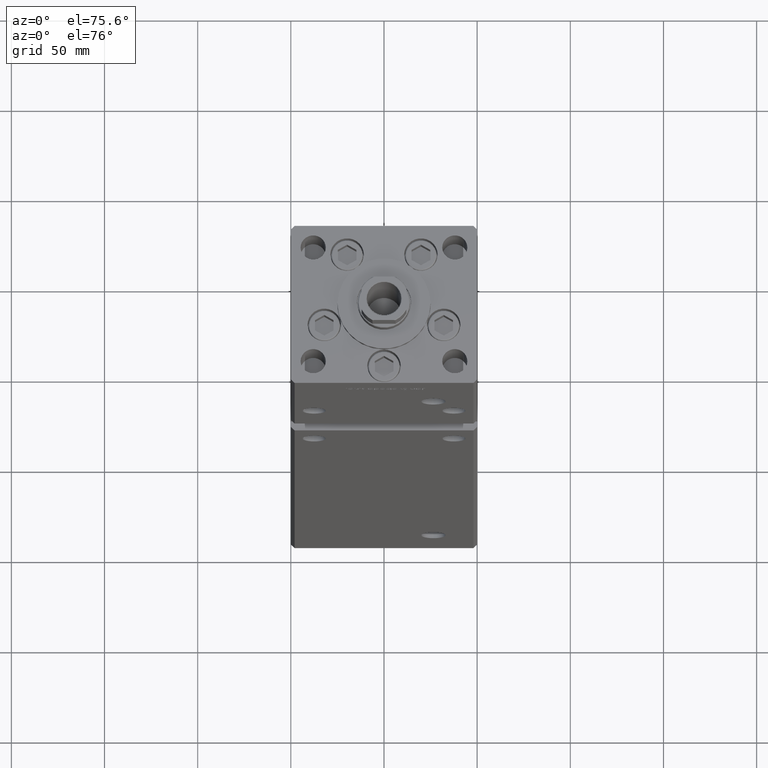
[diagram: clean part render]
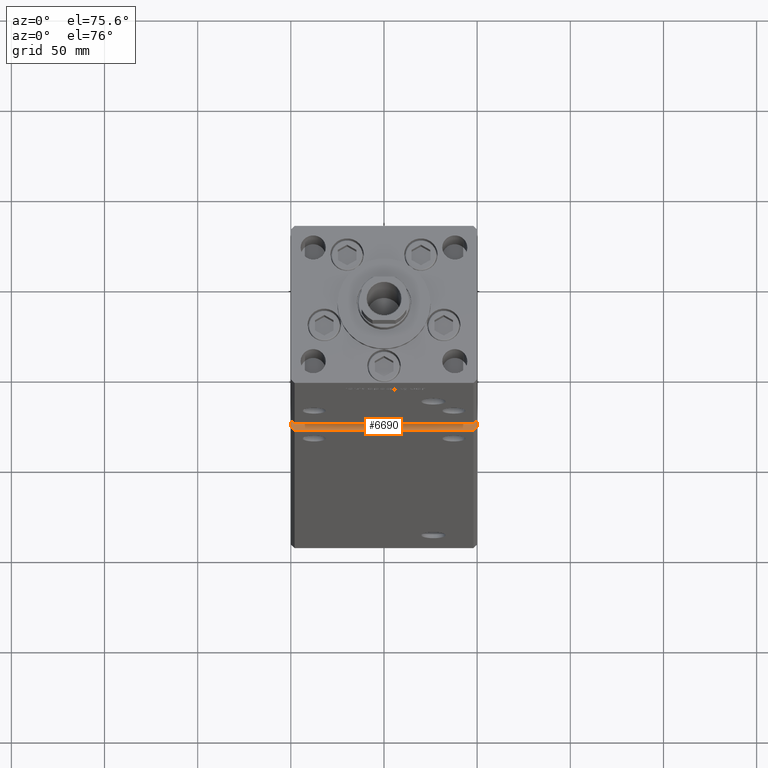
[diagram: same view with one face highlighted and labeled with its STEP entity id]
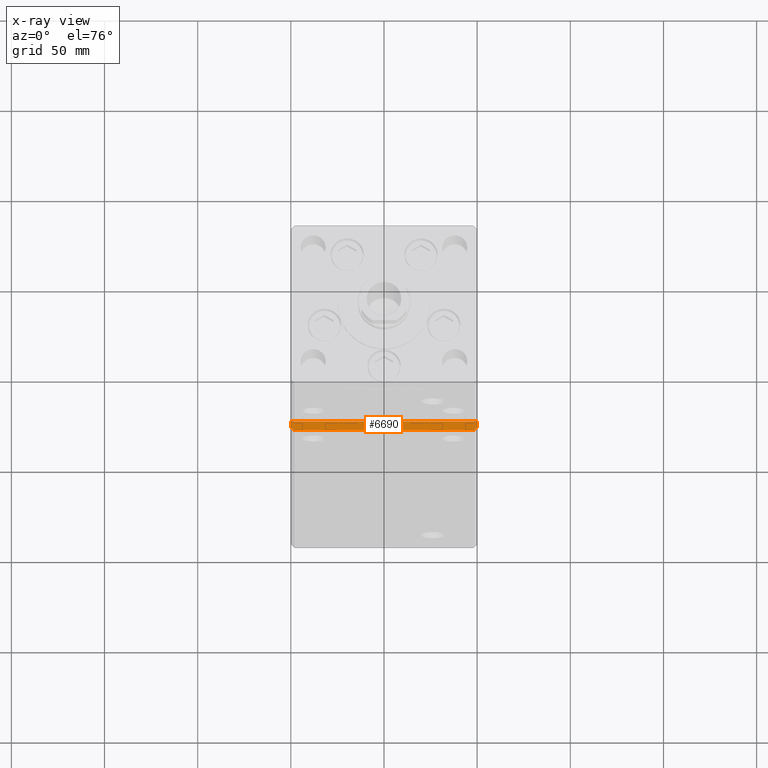
[diagram: x-ray of the same camera — body ghosted, the highlighted face saturated]
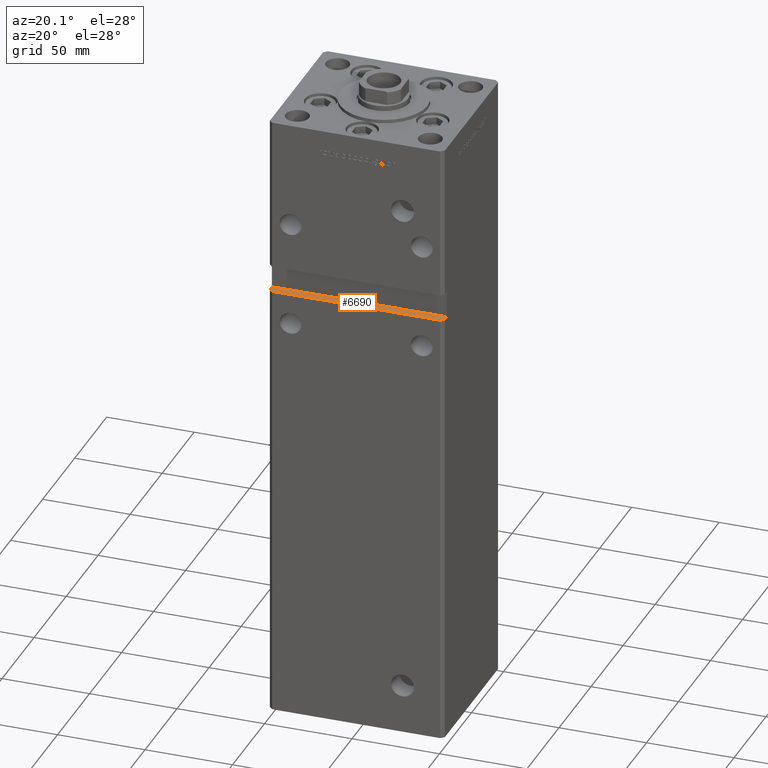
[diagram: same view with one face highlighted and labeled with its STEP entity id]
A machine part, auxiliary view. The second image highlights one B-rep face of the part: STEP entity #6690.
The next image is the same camera in x-ray: the body ghosted, the highlighted face saturated — about 0% of this face is hidden behind the body in this view.
A second angle (auxiliary view) of the same face is appended — the face is thin or edge-on in the first view.
In plain terms, the highlighted planar face has unit normal (0, 0, -1).
Its self-contained STEP definition (entity closure, byte-faithful):
#706 = CARTESIAN_POINT ( 'NONE',  ( -49.99999999999998579, -43.50000000000000000, 235.0000000000000000 ) ) ;
#869 = VECTOR ( 'NONE', #31274, 1000.000000000000114 ) ;
#1835 = VERTEX_POINT ( 'NONE', #37860 ) ;
#1865 = CARTESIAN_POINT ( 'NONE',  ( 47.99999999999998579, -43.50000000000000000, 235.0000000000000000 ) ) ;
#2505 = CARTESIAN_POINT ( 'NONE',  ( -49.99999999999998579, -38.50000000000000000, 235.0000000000000000 ) ) ;
#3049 = CARTESIAN_POINT ( 'NONE',  ( 49.99999999999998579, -38.50000000000000000, 235.0000000000000000 ) ) ;
#3150 = EDGE_LOOP ( 'NONE', ( #41624, #37585, #46449, #41043, #9853, #32683 ) ) ;
#4388 = VECTOR ( 'NONE', #37754, 1000.000000000000000 ) ;
#5982 = LINE ( 'NONE', #25643, #4388 ) ;
#6690 = ADVANCED_FACE ( 'NONE', ( #17757 ), #13711, .F. ) ;
#9696 = CARTESIAN_POINT ( 'NONE',  ( -49.99999999999998579, -38.50000000000000000, 235.0000000000000000 ) ) ;
#9853 = ORIENTED_EDGE ( 'NONE', *, *, #52220, .T. ) ;
#10575 = VERTEX_POINT ( 'NONE', #51579 ) ;
#10821 = CARTESIAN_POINT ( 'NONE',  ( -49.99999999999998579, -41.49999999999999289, 235.0000000000000000 ) ) ;
#13556 = CARTESIAN_POINT ( 'NONE',  ( -49.99999999999998579, -38.50000000000000000, 235.0000000000000000 ) ) ;
#13571 = EDGE_CURVE ( 'NONE', #34584, #51765, #51706, .T. ) ;
#13711 = PLANE ( 'NONE',  #26918 ) ;
#13852 = DIRECTION ( 'NONE',  ( 1.000000000000000000, 0.000000000000000000, 0.000000000000000000 ) ) ;
#16304 = CARTESIAN_POINT ( 'NONE',  ( 49.99999999999998579, -41.49999999999999289, 235.0000000000000000 ) ) ;
#17319 = VECTOR ( 'NONE', #18914, 1000.000000000000000 ) ;
#17757 = FACE_OUTER_BOUND ( 'NONE', #3150, .T. ) ;
#18914 = DIRECTION ( 'NONE',  ( 1.000000000000000000, 0.000000000000000000, 0.000000000000000000 ) ) ;
#22108 = VECTOR ( 'NONE', #40151, 1000.000000000000000 ) ;
#23679 = CARTESIAN_POINT ( 'NONE',  ( 49.99999999999998579, -38.49999999999999289, 235.0000000000000000 ) ) ;
#25643 = CARTESIAN_POINT ( 'NONE',  ( -49.99999999999998579, -38.50000000000000000, 235.0000000000000000 ) ) ;
#25707 = VERTEX_POINT ( 'NONE', #1865 ) ;
#25834 = DIRECTION ( 'NONE',  ( -1.000000000000000000, 0.000000000000000000, -0.000000000000000000 ) ) ;
#26918 = AXIS2_PLACEMENT_3D ( 'NONE', #9696, #50281, #25834 ) ;
#31274 = DIRECTION ( 'NONE',  ( -0.7071067811865474617, 0.7071067811865474617, 0.000000000000000000 ) ) ;
#32683 = ORIENTED_EDGE ( 'NONE', *, *, #49472, .F. ) ;
#33820 = LINE ( 'NONE', #2505, #17319 ) ;
#34222 = EDGE_CURVE ( 'NONE', #50272, #34584, #33820, .T. ) ;
#34584 = VERTEX_POINT ( 'NONE', #23679 ) ;
#37585 = ORIENTED_EDGE ( 'NONE', *, *, #44315, .T. ) ;
#37754 = DIRECTION ( 'NONE',  ( -0.000000000000000000, -1.000000000000000000, -0.000000000000000000 ) ) ;
#37860 = CARTESIAN_POINT ( 'NONE',  ( -49.99999999999998579, -41.49999999999999289, 235.0000000000000000 ) ) ;
#40151 = DIRECTION ( 'NONE',  ( -0.000000000000000000, -1.000000000000000000, -0.000000000000000000 ) ) ;
#40514 = DIRECTION ( 'NONE',  ( 0.7071067811865474617, 0.7071067811865474617, 0.000000000000000000 ) ) ;
#41043 = ORIENTED_EDGE ( 'NONE', *, *, #34222, .F. ) ;
#41624 = ORIENTED_EDGE ( 'NONE', *, *, #48330, .T. ) ;
#42559 = LINE ( 'NONE', #10821, #869 ) ;
#43743 = VECTOR ( 'NONE', #40514, 1000.000000000000114 ) ;
#44315 = EDGE_CURVE ( 'NONE', #25707, #51765, #45603, .T. ) ;
#45434 = VECTOR ( 'NONE', #13852, 1000.000000000000000 ) ;
#45603 = LINE ( 'NONE', #16304, #43743 ) ;
#45648 = CARTESIAN_POINT ( 'NONE',  ( 49.99999999999998579, -41.49999999999999289, 235.0000000000000000 ) ) ;
#46449 = ORIENTED_EDGE ( 'NONE', *, *, #13571, .F. ) ;
#48330 = EDGE_CURVE ( 'NONE', #10575, #25707, #50679, .T. ) ;
#49472 = EDGE_CURVE ( 'NONE', #10575, #1835, #42559, .T. ) ;
#50272 = VERTEX_POINT ( 'NONE', #13556 ) ;
#50281 = DIRECTION ( 'NONE',  ( 0.000000000000000000, 0.000000000000000000, -1.000000000000000000 ) ) ;
#50679 = LINE ( 'NONE', #706, #45434 ) ;
#51579 = CARTESIAN_POINT ( 'NONE',  ( -47.99999999999998579, -43.50000000000000000, 235.0000000000000000 ) ) ;
#51706 = LINE ( 'NONE', #3049, #22108 ) ;
#51765 = VERTEX_POINT ( 'NONE', #45648 ) ;
#52220 = EDGE_CURVE ( 'NONE', #50272, #1835, #5982, .T. ) ;